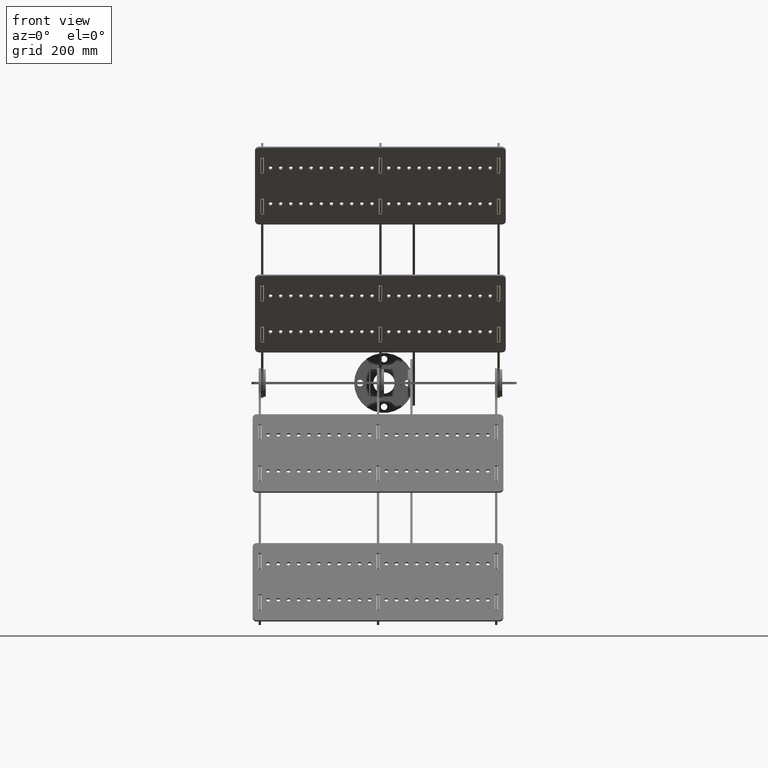
[diagram: clean part render]
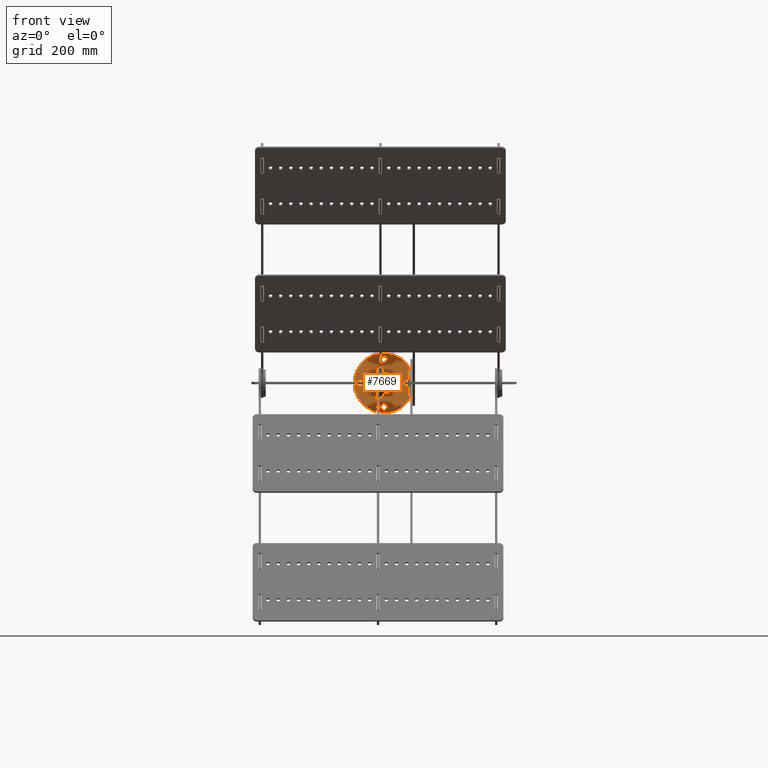
[diagram: same view with one face highlighted and labeled with its STEP entity id]
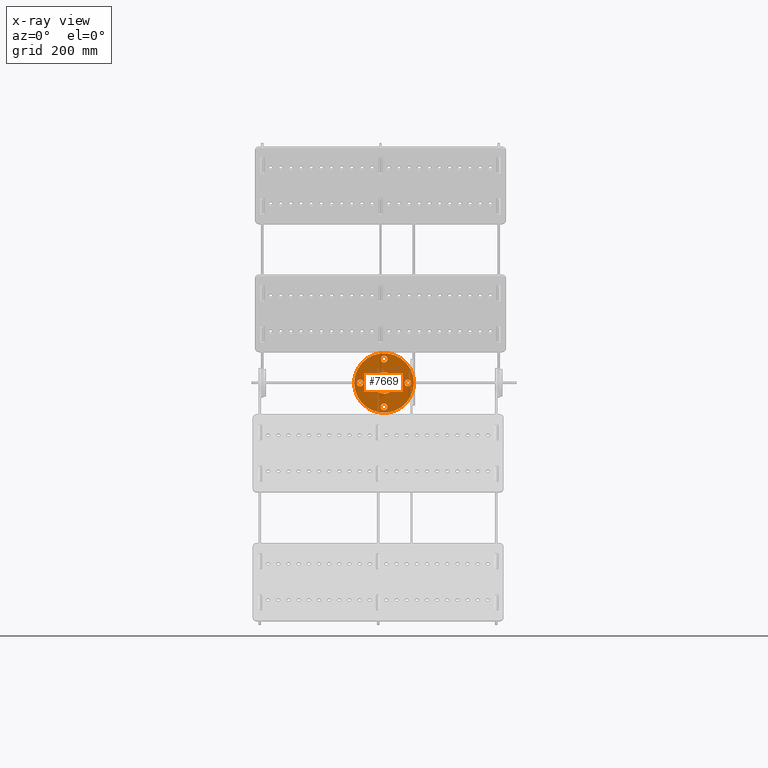
[diagram: x-ray of the same camera — body ghosted, the highlighted face saturated]
A machine part, front view. The second image highlights one B-rep face of the part: STEP entity #7669.
The next image is the same camera in x-ray: the body ghosted, the highlighted face saturated — about 17% of this face is hidden behind the body in this view.
In plain terms, the highlighted planar face has unit normal (0, 1, -0).
Its self-contained STEP definition (entity closure, byte-faithful):
#156 = PLANE ( 'NONE',  #4663 ) ;
#322 = AXIS2_PLACEMENT_3D ( 'NONE', #3707, #12871, #5040 ) ;
#509 = CIRCLE ( 'NONE', #7809, 5.500000000000879300 ) ;
#510 = ORIENTED_EDGE ( 'NONE', *, *, #13916, .F. ) ;
#577 = ORIENTED_EDGE ( 'NONE', *, *, #2587, .F. ) ;
#638 = DIRECTION ( 'NONE',  ( -2.803514496697479900E-035, 0.0000000000000000000, -1.000000000000000000 ) ) ;
#639 = CARTESIAN_POINT ( 'NONE',  ( 45.50000000000199700, 1.127810134255461500E-012, -1.541932973183860300E-034 ) ) ;
#674 = FACE_OUTER_BOUND ( 'NONE', #16212, .T. ) ;
#718 = EDGE_CURVE ( 'NONE', #10337, #9086, #9909, .T. ) ;
#837 = CARTESIAN_POINT ( 'NONE',  ( -1.682108698018489400E-034, 0.0000000000000000000, 0.0000000000000000000 ) ) ;
#1063 = VERTEX_POINT ( 'NONE', #11844 ) ;
#1086 = FACE_BOUND ( 'NONE', #7681, .T. ) ;
#1180 = CARTESIAN_POINT ( 'NONE',  ( 40.00000000000111600, 1.127136578515930400E-012, 0.0000000000000000000 ) ) ;
#1591 = CIRCLE ( 'NONE', #4900, 18.00000000000000400 ) ;
#1660 = EDGE_LOOP ( 'NONE', ( #15008, #10836 ) ) ;
#1950 = AXIS2_PLACEMENT_3D ( 'NONE', #6655, #15796, #7986 ) ;
#1987 = CARTESIAN_POINT ( 'NONE',  ( -34.49999999999705100, -1.136004001894271600E-012, -1.541932973184123300E-034 ) ) ;
#2013 = EDGE_CURVE ( 'NONE', #2291, #2053, #11649, .T. ) ;
#2053 = VERTEX_POINT ( 'NONE', #12620 ) ;
#2083 = EDGE_CURVE ( 'NONE', #9021, #3197, #6520, .T. ) ;
#2162 = DIRECTION ( 'NONE',  ( -1.000000000000000000, 0.0000000000000000000, 2.803514496697479900E-035 ) ) ;
#2198 = CARTESIAN_POINT ( 'NONE',  ( 50.00000000000000000, 6.123233995736766100E-015, -1.401757248348739900E-033 ) ) ;
#2291 = VERTEX_POINT ( 'NONE', #2604 ) ;
#2503 = DIRECTION ( 'NONE',  ( -1.000000000000000000, 0.0000000000000000000, 2.803514496697479900E-035 ) ) ;
#2587 = EDGE_CURVE ( 'NONE', #5223, #16752, #509, .T. ) ;
#2604 = CARTESIAN_POINT ( 'NONE',  ( -5.500000000000155400, -40.00000000000000000, 1.541932973184295600E-034 ) ) ;
#3004 = ORIENTED_EDGE ( 'NONE', *, *, #9434, .F. ) ;
#3073 = DIRECTION ( 'NONE',  ( 2.803514496697479900E-035, -0.0000000000000000000, 1.000000000000000000 ) ) ;
#3196 = CARTESIAN_POINT ( 'NONE',  ( -45.50000000000068900, -1.136677557633802800E-012, 1.541932973184123300E-034 ) ) ;
#3197 = VERTEX_POINT ( 'NONE', #1987 ) ;
#3350 = CIRCLE ( 'NONE', #8136, 50.00000000000000000 ) ;
#3636 = DIRECTION ( 'NONE',  ( -2.803514496697479900E-035, 0.0000000000000000000, -1.000000000000000000 ) ) ;
#3707 = CARTESIAN_POINT ( 'NONE',  ( -1.682108698018489400E-034, 40.00000000000000000, 0.0000000000000000000 ) ) ;
#4173 = CIRCLE ( 'NONE', #322, 5.499999999999999100 ) ;
#4199 = FACE_BOUND ( 'NONE', #1660, .T. ) ;
#4497 = EDGE_CURVE ( 'NONE', #1063, #13321, #16137, .T. ) ;
#4505 = CARTESIAN_POINT ( 'NONE',  ( -18.00000000000000400, 0.0000000000000000000, 5.046326094055464400E-034 ) ) ;
#4663 = AXIS2_PLACEMENT_3D ( 'NONE', #6771, #15920, #8084 ) ;
#4900 = AXIS2_PLACEMENT_3D ( 'NONE', #7766, #16916, #9059 ) ;
#5021 = AXIS2_PLACEMENT_3D ( 'NONE', #10934, #3073, #12222 ) ;
#5040 = DIRECTION ( 'NONE',  ( -1.000000000000000000, 0.0000000000000000000, 2.803514496697479900E-035 ) ) ;
#5223 = VERTEX_POINT ( 'NONE', #639 ) ;
#5367 = ORIENTED_EDGE ( 'NONE', *, *, #16202, .F. ) ;
#5435 = ORIENTED_EDGE ( 'NONE', *, *, #10036, .F. ) ;
#5584 = AXIS2_PLACEMENT_3D ( 'NONE', #15171, #7366, #16507 ) ;
#6520 = CIRCLE ( 'NONE', #17011, 5.500000000001816300 ) ;
#6637 = DIRECTION ( 'NONE',  ( -2.803514496697479900E-035, 0.0000000000000000000, -1.000000000000000000 ) ) ;
#6655 = CARTESIAN_POINT ( 'NONE',  ( -1.682108698018489400E-034, 40.00000000000000000, 0.0000000000000000000 ) ) ;
#6771 = CARTESIAN_POINT ( 'NONE',  ( 0.0000000000000000000, 0.0000000000000000000, 0.0000000000000000000 ) ) ;
#6906 = CARTESIAN_POINT ( 'NONE',  ( 34.50000000000024200, 1.127136578515930400E-012, 1.541932973183860300E-034 ) ) ;
#7330 = DIRECTION ( 'NONE',  ( -2.803514496697479900E-035, 0.0000000000000000000, -1.000000000000000000 ) ) ;
#7366 = DIRECTION ( 'NONE',  ( -2.803514496697479900E-035, 0.0000000000000000000, -1.000000000000000000 ) ) ;
#7596 = DIRECTION ( 'NONE',  ( -2.803514496697479900E-035, 0.0000000000000000000, -1.000000000000000000 ) ) ;
#7668 = FACE_BOUND ( 'NONE', #16394, .T. ) ;
#7669 = ADVANCED_FACE ( 'NONE', ( #11149, #15017, #1086, #7668, #4199, #674 ), #156, .F. ) ;
#7681 = EDGE_LOOP ( 'NONE', ( #9302, #510 ) ) ;
#7766 = CARTESIAN_POINT ( 'NONE',  ( -1.682108698018489400E-034, 0.0000000000000000000, 0.0000000000000000000 ) ) ;
#7809 = AXIS2_PLACEMENT_3D ( 'NONE', #1180, #10381, #2503 ) ;
#7859 = CIRCLE ( 'NONE', #15919, 5.500000000000879300 ) ;
#7986 = DIRECTION ( 'NONE',  ( -1.000000000000000000, 0.0000000000000000000, 2.803514496697479900E-035 ) ) ;
#8084 = DIRECTION ( 'NONE',  ( 1.000000000000000000, 0.0000000000000000000, 2.803514496697479900E-035 ) ) ;
#8136 = AXIS2_PLACEMENT_3D ( 'NONE', #837, #10031, #2162 ) ;
#8509 = CARTESIAN_POINT ( 'NONE',  ( -39.99999999999887000, -1.136677557633802800E-012, 0.0000000000000000000 ) ) ;
#9006 = CARTESIAN_POINT ( 'NONE',  ( -5.499999999999999100, 40.00000000000000000, 1.541932973183613600E-034 ) ) ;
#9008 = VERTEX_POINT ( 'NONE', #4505 ) ;
#9021 = VERTEX_POINT ( 'NONE', #3196 ) ;
#9059 = DIRECTION ( 'NONE',  ( -1.000000000000000000, 0.0000000000000000000, 2.803514496697479900E-035 ) ) ;
#9086 = VERTEX_POINT ( 'NONE', #9006 ) ;
#9302 = ORIENTED_EDGE ( 'NONE', *, *, #2013, .F. ) ;
#9434 = EDGE_CURVE ( 'NONE', #13321, #1063, #3350, .T. ) ;
#9821 = DIRECTION ( 'NONE',  ( -1.000000000000000000, 0.0000000000000000000, 2.803514496697480400E-035 ) ) ;
#9909 = CIRCLE ( 'NONE', #1950, 5.499999999999999100 ) ;
#10031 = DIRECTION ( 'NONE',  ( 2.803514496697479900E-035, -0.0000000000000000000, 1.000000000000000000 ) ) ;
#10036 = EDGE_CURVE ( 'NONE', #16752, #5223, #7859, .T. ) ;
#10148 = EDGE_LOOP ( 'NONE', ( #12266, #5367 ) ) ;
#10168 = EDGE_CURVE ( 'NONE', #9086, #10337, #4173, .T. ) ;
#10337 = VERTEX_POINT ( 'NONE', #11908 ) ;
#10381 = DIRECTION ( 'NONE',  ( -2.803514496697479900E-035, 0.0000000000000000000, -1.000000000000000000 ) ) ;
#10683 = AXIS2_PLACEMENT_3D ( 'NONE', #15414, #7596, #16744 ) ;
#10836 = ORIENTED_EDGE ( 'NONE', *, *, #16512, .F. ) ;
#10934 = CARTESIAN_POINT ( 'NONE',  ( -1.682108698018489400E-034, 0.0000000000000000000, 0.0000000000000000000 ) ) ;
#11149 = FACE_BOUND ( 'NONE', #10148, .T. ) ;
#11298 = ORIENTED_EDGE ( 'NONE', *, *, #718, .F. ) ;
#11476 = CARTESIAN_POINT ( 'NONE',  ( -39.99999999999887000, -1.136677557633802800E-012, 0.0000000000000000000 ) ) ;
#11649 = CIRCLE ( 'NONE', #5584, 5.500000000002431800 ) ;
#11844 = CARTESIAN_POINT ( 'NONE',  ( -50.00000000000000000, 0.0000000000000000000, 1.401757248348739900E-033 ) ) ;
#11908 = CARTESIAN_POINT ( 'NONE',  ( 5.499999999999999100, 40.00000000000000000, -1.541932973183613600E-034 ) ) ;
#12074 = CIRCLE ( 'NONE', #15277, 5.500000000001816300 ) ;
#12106 = ORIENTED_EDGE ( 'NONE', *, *, #4497, .F. ) ;
#12173 = AXIS2_PLACEMENT_3D ( 'NONE', #14490, #6637, #15781 ) ;
#12222 = DIRECTION ( 'NONE',  ( -1.000000000000000000, 0.0000000000000000000, 2.803514496697479900E-035 ) ) ;
#12266 = ORIENTED_EDGE ( 'NONE', *, *, #2083, .F. ) ;
#12284 = CARTESIAN_POINT ( 'NONE',  ( 18.00000000000000400, 2.204364238465235800E-015, -5.046326094055464400E-034 ) ) ;
#12620 = CARTESIAN_POINT ( 'NONE',  ( 5.500000000004707300, -40.00000000000000000, -1.541932973184295600E-034 ) ) ;
#12782 = DIRECTION ( 'NONE',  ( -1.000000000000000000, 0.0000000000000000000, 2.803514496697480400E-035 ) ) ;
#12871 = DIRECTION ( 'NONE',  ( -2.803514496697479900E-035, 0.0000000000000000000, -1.000000000000000000 ) ) ;
#13302 = CIRCLE ( 'NONE', #12173, 18.00000000000000400 ) ;
#13321 = VERTEX_POINT ( 'NONE', #2198 ) ;
#13522 = EDGE_CURVE ( 'NONE', #9008, #14623, #13302, .T. ) ;
#13916 = EDGE_CURVE ( 'NONE', #2053, #2291, #14078, .T. ) ;
#14078 = CIRCLE ( 'NONE', #10683, 5.500000000002431800 ) ;
#14145 = ORIENTED_EDGE ( 'NONE', *, *, #10168, .F. ) ;
#14490 = CARTESIAN_POINT ( 'NONE',  ( -1.682108698018489400E-034, 0.0000000000000000000, 0.0000000000000000000 ) ) ;
#14623 = VERTEX_POINT ( 'NONE', #12284 ) ;
#15008 = ORIENTED_EDGE ( 'NONE', *, *, #13522, .F. ) ;
#15017 = FACE_BOUND ( 'NONE', #15019, .T. ) ;
#15019 = EDGE_LOOP ( 'NONE', ( #14145, #11298 ) ) ;
#15143 = CARTESIAN_POINT ( 'NONE',  ( 40.00000000000111600, 1.127136578515930400E-012, 0.0000000000000000000 ) ) ;
#15171 = CARTESIAN_POINT ( 'NONE',  ( 2.275957200481570900E-012, -40.00000000000000000, 0.0000000000000000000 ) ) ;
#15277 = AXIS2_PLACEMENT_3D ( 'NONE', #8509, #638, #9821 ) ;
#15414 = CARTESIAN_POINT ( 'NONE',  ( 2.275957200481570900E-012, -40.00000000000000000, 0.0000000000000000000 ) ) ;
#15781 = DIRECTION ( 'NONE',  ( -1.000000000000000000, 0.0000000000000000000, 2.803514496697479900E-035 ) ) ;
#15796 = DIRECTION ( 'NONE',  ( -2.803514496697479900E-035, 0.0000000000000000000, -1.000000000000000000 ) ) ;
#15919 = AXIS2_PLACEMENT_3D ( 'NONE', #15143, #7330, #16455 ) ;
#15920 = DIRECTION ( 'NONE',  ( -2.803514496697479900E-035, 0.0000000000000000000, 1.000000000000000000 ) ) ;
#16137 = CIRCLE ( 'NONE', #5021, 50.00000000000000000 ) ;
#16202 = EDGE_CURVE ( 'NONE', #3197, #9021, #12074, .T. ) ;
#16212 = EDGE_LOOP ( 'NONE', ( #12106, #3004 ) ) ;
#16394 = EDGE_LOOP ( 'NONE', ( #5435, #577 ) ) ;
#16455 = DIRECTION ( 'NONE',  ( -1.000000000000000000, 0.0000000000000000000, 2.803514496697479900E-035 ) ) ;
#16507 = DIRECTION ( 'NONE',  ( -1.000000000000000000, 0.0000000000000000000, 2.803514496697479900E-035 ) ) ;
#16512 = EDGE_CURVE ( 'NONE', #14623, #9008, #1591, .T. ) ;
#16744 = DIRECTION ( 'NONE',  ( -1.000000000000000000, 0.0000000000000000000, 2.803514496697479900E-035 ) ) ;
#16752 = VERTEX_POINT ( 'NONE', #6906 ) ;
#16916 = DIRECTION ( 'NONE',  ( -2.803514496697479900E-035, 0.0000000000000000000, -1.000000000000000000 ) ) ;
#17011 = AXIS2_PLACEMENT_3D ( 'NONE', #11476, #3636, #12782 ) ;